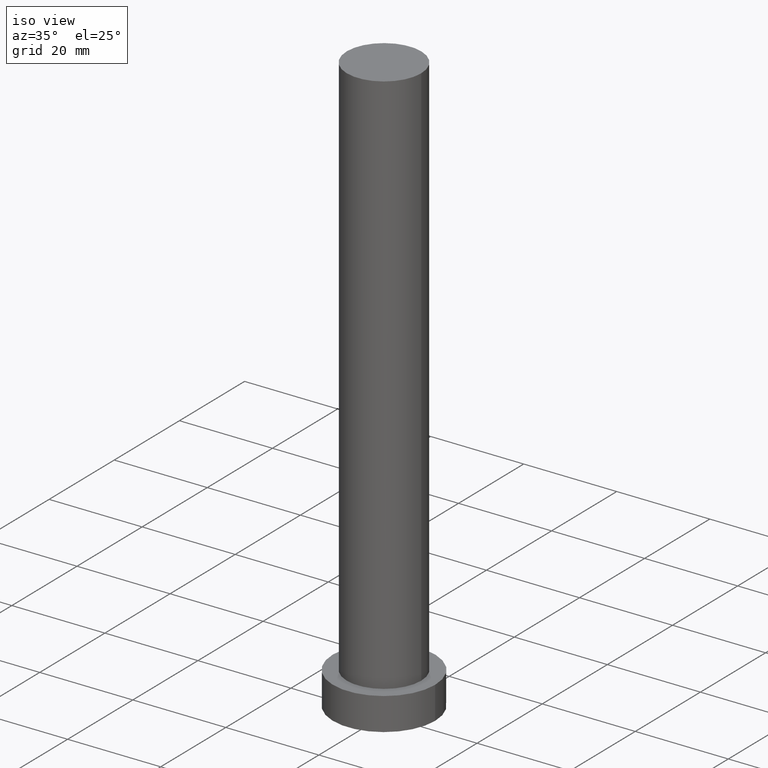
[diagram: clean part render]
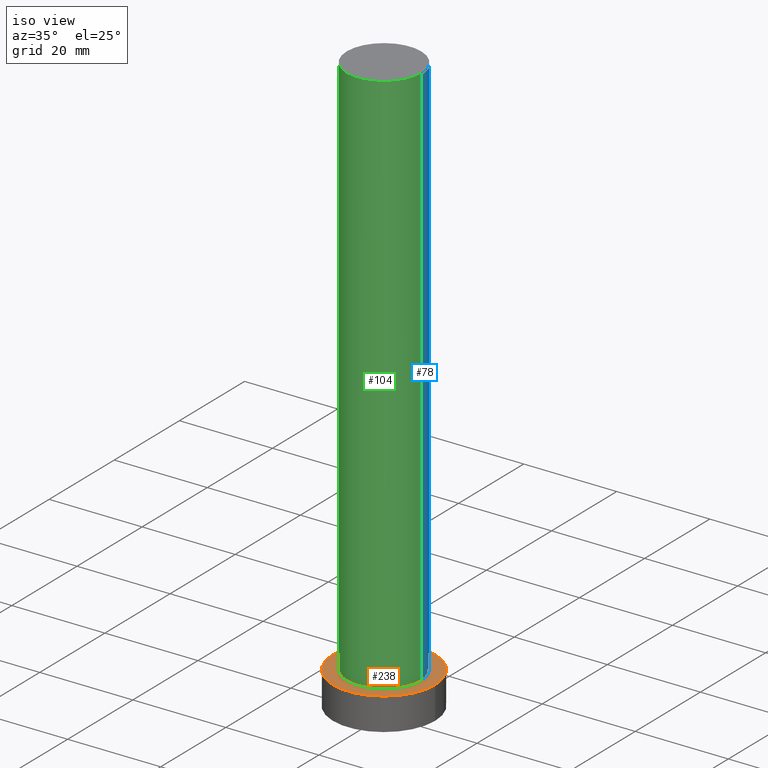
[diagram: same view with three faces highlighted in distinct colors, each labeled with its STEP entity id]
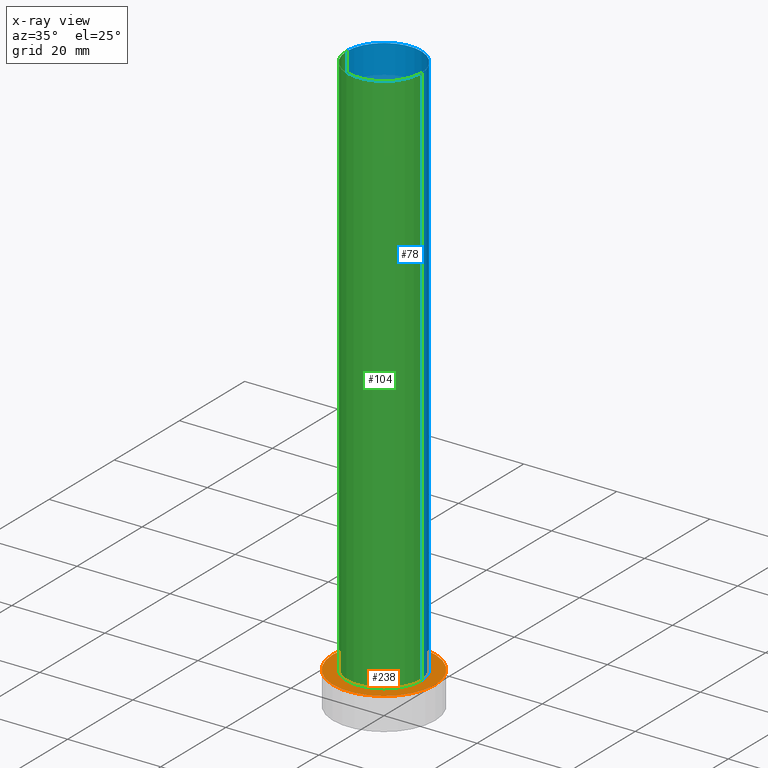
[diagram: x-ray of the same camera — body ghosted, the three highlighted faces saturated]
A machine part, iso view with three faces highlighted in distinct colors.
The next image is the same camera in x-ray (body ghosted, the three faces saturated) — at least one of them is partly hidden behind the body in this view.
Their STEP definitions:

[orange] entity #238 — the highlighted planar face has unit normal (0, 0, 1).
#1 = CIRCLE ( 'NONE', #61, 8.000000000000000000 ) ;
#3 = FACE_OUTER_BOUND ( 'NONE', #67, .T. ) ;
#6 = EDGE_CURVE ( 'NONE', #112, #69, #1, .T. ) ;
#13 = DIRECTION ( 'NONE',  ( 1.000000000000000000, 0.000000000000000000, -0.000000000000000000 ) ) ;
#15 = DIRECTION ( 'NONE',  ( 0.000000000000000000, 0.000000000000000000, 1.000000000000000000 ) ) ;
#22 = DIRECTION ( 'NONE',  ( 1.000000000000000000, 0.000000000000000000, 0.000000000000000000 ) ) ;
#27 = DIRECTION ( 'NONE',  ( 0.000000000000000000, 0.000000000000000000, 1.000000000000000000 ) ) ;
#31 = EDGE_CURVE ( 'NONE', #69, #112, #240, .T. ) ;
#35 = EDGE_CURVE ( 'NONE', #44, #186, #118, .T. ) ;
#44 = VERTEX_POINT ( 'NONE', #113 ) ;
#51 = AXIS2_PLACEMENT_3D ( 'NONE', #52, #219, #13 ) ;
#52 = CARTESIAN_POINT ( 'NONE',  ( 0.000000000000000000, 0.000000000000000000, 7.000000000000000000 ) ) ;
#57 = DIRECTION ( 'NONE',  ( 1.000000000000000000, 0.000000000000000000, 0.000000000000000000 ) ) ;
#61 = AXIS2_PLACEMENT_3D ( 'NONE', #247, #27, #144 ) ;
#67 = EDGE_LOOP ( 'NONE', ( #88, #246 ) ) ;
#68 = CARTESIAN_POINT ( 'NONE',  ( 0.000000000000000000, 0.000000000000000000, 7.000000000000000000 ) ) ;
#69 = VERTEX_POINT ( 'NONE', #236 ) ;
#71 = EDGE_LOOP ( 'NONE', ( #250, #155 ) ) ;
#76 = CARTESIAN_POINT ( 'NONE',  ( -8.000000000000000000, 0.000000000000000000, 7.000000000000000000 ) ) ;
#81 = AXIS2_PLACEMENT_3D ( 'NONE', #96, #174, #152 ) ;
#88 = ORIENTED_EDGE ( 'NONE', *, *, #35, .T. ) ;
#93 = FACE_BOUND ( 'NONE', #71, .T. ) ;
#96 = CARTESIAN_POINT ( 'NONE',  ( 0.000000000000000000, 0.000000000000000000, 7.000000000000000000 ) ) ;
#112 = VERTEX_POINT ( 'NONE', #76 ) ;
#113 = CARTESIAN_POINT ( 'NONE',  ( -11.00000000000000000, 0.000000000000000000, 7.000000000000000000 ) ) ;
#118 = CIRCLE ( 'NONE', #197, 11.00000000000000000 ) ;
#120 = CARTESIAN_POINT ( 'NONE',  ( 11.00000000000000000, 1.347111479062088405E-15, 7.000000000000000000 ) ) ;
#125 = EDGE_CURVE ( 'NONE', #186, #44, #182, .T. ) ;
#144 = DIRECTION ( 'NONE',  ( 1.000000000000000000, 0.000000000000000000, 0.000000000000000000 ) ) ;
#152 = DIRECTION ( 'NONE',  ( 1.000000000000000000, 0.000000000000000000, 0.000000000000000000 ) ) ;
#155 = ORIENTED_EDGE ( 'NONE', *, *, #31, .F. ) ;
#174 = DIRECTION ( 'NONE',  ( 0.000000000000000000, 0.000000000000000000, 1.000000000000000000 ) ) ;
#178 = AXIS2_PLACEMENT_3D ( 'NONE', #235, #15, #57 ) ;
#182 = CIRCLE ( 'NONE', #178, 11.00000000000000000 ) ;
#186 = VERTEX_POINT ( 'NONE', #120 ) ;
#197 = AXIS2_PLACEMENT_3D ( 'NONE', #68, #209, #22 ) ;
#209 = DIRECTION ( 'NONE',  ( 0.000000000000000000, 0.000000000000000000, 1.000000000000000000 ) ) ;
#219 = DIRECTION ( 'NONE',  ( 0.000000000000000000, 0.000000000000000000, 1.000000000000000000 ) ) ;
#235 = CARTESIAN_POINT ( 'NONE',  ( 0.000000000000000000, 0.000000000000000000, 7.000000000000000000 ) ) ;
#236 = CARTESIAN_POINT ( 'NONE',  ( 8.000000000000000000, 9.797174393178825657E-16, 7.000000000000000000 ) ) ;
#238 = ADVANCED_FACE ( 'NONE', ( #93, #3 ), #248, .T. ) ;
#240 = CIRCLE ( 'NONE', #81, 8.000000000000000000 ) ;
#246 = ORIENTED_EDGE ( 'NONE', *, *, #125, .T. ) ;
#247 = CARTESIAN_POINT ( 'NONE',  ( 0.000000000000000000, 0.000000000000000000, 7.000000000000000000 ) ) ;
#248 = PLANE ( 'NONE',  #51 ) ;
#250 = ORIENTED_EDGE ( 'NONE', *, *, #6, .F. ) ;

[blue] entity #78 — the highlighted cylindrical surface (partial cylindrical patch) has radius 8 mm, axis along (-0, -0, -1).
#11 = EDGE_CURVE ( 'NONE', #150, #69, #231, .T. ) ;
#29 = LINE ( 'NONE', #98, #203 ) ;
#31 = EDGE_CURVE ( 'NONE', #69, #112, #240, .T. ) ;
#54 = FACE_OUTER_BOUND ( 'NONE', #189, .T. ) ;
#58 = ORIENTED_EDGE ( 'NONE', *, *, #11, .T. ) ;
#65 = DIRECTION ( 'NONE',  ( 1.000000000000000000, 0.000000000000000000, 0.000000000000000000 ) ) ;
#69 = VERTEX_POINT ( 'NONE', #236 ) ;
#72 = CARTESIAN_POINT ( 'NONE',  ( 8.000000000000000000, 9.797174393178825657E-16, 125.0000000000000000 ) ) ;
#76 = CARTESIAN_POINT ( 'NONE',  ( -8.000000000000000000, 0.000000000000000000, 7.000000000000000000 ) ) ;
#78 = ADVANCED_FACE ( 'NONE', ( #54 ), #217, .T. ) ;
#81 = AXIS2_PLACEMENT_3D ( 'NONE', #96, #174, #152 ) ;
#96 = CARTESIAN_POINT ( 'NONE',  ( 0.000000000000000000, 0.000000000000000000, 7.000000000000000000 ) ) ;
#98 = CARTESIAN_POINT ( 'NONE',  ( -8.000000000000000000, 0.000000000000000000, 125.0000000000000000 ) ) ;
#111 = VECTOR ( 'NONE', #215, 1000.000000000000000 ) ;
#112 = VERTEX_POINT ( 'NONE', #76 ) ;
#115 = CARTESIAN_POINT ( 'NONE',  ( -8.000000000000000000, 0.000000000000000000, 125.0000000000000000 ) ) ;
#122 = AXIS2_PLACEMENT_3D ( 'NONE', #224, #169, #65 ) ;
#145 = CARTESIAN_POINT ( 'NONE',  ( 8.000000000000000000, 9.797174393178825657E-16, 125.0000000000000000 ) ) ;
#147 = DIRECTION ( 'NONE',  ( -1.000000000000000000, 0.000000000000000000, 0.000000000000000000 ) ) ;
#149 = CIRCLE ( 'NONE', #122, 8.000000000000000000 ) ;
#150 = VERTEX_POINT ( 'NONE', #145 ) ;
#151 = AXIS2_PLACEMENT_3D ( 'NONE', #232, #163, #147 ) ;
#152 = DIRECTION ( 'NONE',  ( 1.000000000000000000, 0.000000000000000000, 0.000000000000000000 ) ) ;
#158 = ORIENTED_EDGE ( 'NONE', *, *, #171, .F. ) ;
#163 = DIRECTION ( 'NONE',  ( -0.000000000000000000, -0.000000000000000000, -1.000000000000000000 ) ) ;
#169 = DIRECTION ( 'NONE',  ( 0.000000000000000000, 0.000000000000000000, 1.000000000000000000 ) ) ;
#171 = EDGE_CURVE ( 'NONE', #244, #112, #29, .T. ) ;
#173 = ORIENTED_EDGE ( 'NONE', *, *, #31, .T. ) ;
#174 = DIRECTION ( 'NONE',  ( 0.000000000000000000, 0.000000000000000000, 1.000000000000000000 ) ) ;
#177 = DIRECTION ( 'NONE',  ( -0.000000000000000000, -0.000000000000000000, -1.000000000000000000 ) ) ;
#189 = EDGE_LOOP ( 'NONE', ( #228, #58, #173, #158 ) ) ;
#195 = EDGE_CURVE ( 'NONE', #150, #244, #149, .T. ) ;
#203 = VECTOR ( 'NONE', #177, 1000.000000000000000 ) ;
#215 = DIRECTION ( 'NONE',  ( -0.000000000000000000, -0.000000000000000000, -1.000000000000000000 ) ) ;
#217 = CYLINDRICAL_SURFACE ( 'NONE', #151, 8.000000000000000000 ) ;
#224 = CARTESIAN_POINT ( 'NONE',  ( 0.000000000000000000, 0.000000000000000000, 125.0000000000000000 ) ) ;
#228 = ORIENTED_EDGE ( 'NONE', *, *, #195, .F. ) ;
#231 = LINE ( 'NONE', #72, #111 ) ;
#232 = CARTESIAN_POINT ( 'NONE',  ( 0.000000000000000000, 0.000000000000000000, 125.0000000000000000 ) ) ;
#236 = CARTESIAN_POINT ( 'NONE',  ( 8.000000000000000000, 9.797174393178825657E-16, 7.000000000000000000 ) ) ;
#240 = CIRCLE ( 'NONE', #81, 8.000000000000000000 ) ;
#244 = VERTEX_POINT ( 'NONE', #115 ) ;

[green] entity #104 — the highlighted cylindrical surface (partial cylindrical patch) has radius 8 mm, axis along (-0, -0, -1).
#1 = CIRCLE ( 'NONE', #61, 8.000000000000000000 ) ;
#4 = ORIENTED_EDGE ( 'NONE', *, *, #161, .F. ) ;
#6 = EDGE_CURVE ( 'NONE', #112, #69, #1, .T. ) ;
#11 = EDGE_CURVE ( 'NONE', #150, #69, #231, .T. ) ;
#12 = DIRECTION ( 'NONE',  ( 1.000000000000000000, 0.000000000000000000, 0.000000000000000000 ) ) ;
#27 = DIRECTION ( 'NONE',  ( 0.000000000000000000, 0.000000000000000000, 1.000000000000000000 ) ) ;
#28 = CARTESIAN_POINT ( 'NONE',  ( 0.000000000000000000, 0.000000000000000000, 125.0000000000000000 ) ) ;
#29 = LINE ( 'NONE', #98, #203 ) ;
#39 = CIRCLE ( 'NONE', #55, 8.000000000000000000 ) ;
#55 = AXIS2_PLACEMENT_3D ( 'NONE', #28, #119, #12 ) ;
#61 = AXIS2_PLACEMENT_3D ( 'NONE', #247, #27, #144 ) ;
#69 = VERTEX_POINT ( 'NONE', #236 ) ;
#72 = CARTESIAN_POINT ( 'NONE',  ( 8.000000000000000000, 9.797174393178825657E-16, 125.0000000000000000 ) ) ;
#76 = CARTESIAN_POINT ( 'NONE',  ( -8.000000000000000000, 0.000000000000000000, 7.000000000000000000 ) ) ;
#98 = CARTESIAN_POINT ( 'NONE',  ( -8.000000000000000000, 0.000000000000000000, 125.0000000000000000 ) ) ;
#102 = FACE_OUTER_BOUND ( 'NONE', #109, .T. ) ;
#104 = ADVANCED_FACE ( 'NONE', ( #102 ), #166, .T. ) ;
#109 = EDGE_LOOP ( 'NONE', ( #179, #4, #157, #251 ) ) ;
#111 = VECTOR ( 'NONE', #215, 1000.000000000000000 ) ;
#112 = VERTEX_POINT ( 'NONE', #76 ) ;
#115 = CARTESIAN_POINT ( 'NONE',  ( -8.000000000000000000, 0.000000000000000000, 125.0000000000000000 ) ) ;
#119 = DIRECTION ( 'NONE',  ( 0.000000000000000000, 0.000000000000000000, 1.000000000000000000 ) ) ;
#124 = DIRECTION ( 'NONE',  ( -1.000000000000000000, 0.000000000000000000, 0.000000000000000000 ) ) ;
#144 = DIRECTION ( 'NONE',  ( 1.000000000000000000, 0.000000000000000000, 0.000000000000000000 ) ) ;
#145 = CARTESIAN_POINT ( 'NONE',  ( 8.000000000000000000, 9.797174393178825657E-16, 125.0000000000000000 ) ) ;
#150 = VERTEX_POINT ( 'NONE', #145 ) ;
#157 = ORIENTED_EDGE ( 'NONE', *, *, #171, .T. ) ;
#161 = EDGE_CURVE ( 'NONE', #244, #150, #39, .T. ) ;
#166 = CYLINDRICAL_SURFACE ( 'NONE', #210, 8.000000000000000000 ) ;
#171 = EDGE_CURVE ( 'NONE', #244, #112, #29, .T. ) ;
#177 = DIRECTION ( 'NONE',  ( -0.000000000000000000, -0.000000000000000000, -1.000000000000000000 ) ) ;
#179 = ORIENTED_EDGE ( 'NONE', *, *, #11, .F. ) ;
#203 = VECTOR ( 'NONE', #177, 1000.000000000000000 ) ;
#210 = AXIS2_PLACEMENT_3D ( 'NONE', #220, #216, #124 ) ;
#215 = DIRECTION ( 'NONE',  ( -0.000000000000000000, -0.000000000000000000, -1.000000000000000000 ) ) ;
#216 = DIRECTION ( 'NONE',  ( -0.000000000000000000, -0.000000000000000000, -1.000000000000000000 ) ) ;
#220 = CARTESIAN_POINT ( 'NONE',  ( 0.000000000000000000, 0.000000000000000000, 125.0000000000000000 ) ) ;
#231 = LINE ( 'NONE', #72, #111 ) ;
#236 = CARTESIAN_POINT ( 'NONE',  ( 8.000000000000000000, 9.797174393178825657E-16, 7.000000000000000000 ) ) ;
#244 = VERTEX_POINT ( 'NONE', #115 ) ;
#247 = CARTESIAN_POINT ( 'NONE',  ( 0.000000000000000000, 0.000000000000000000, 7.000000000000000000 ) ) ;
#251 = ORIENTED_EDGE ( 'NONE', *, *, #6, .T. ) ;